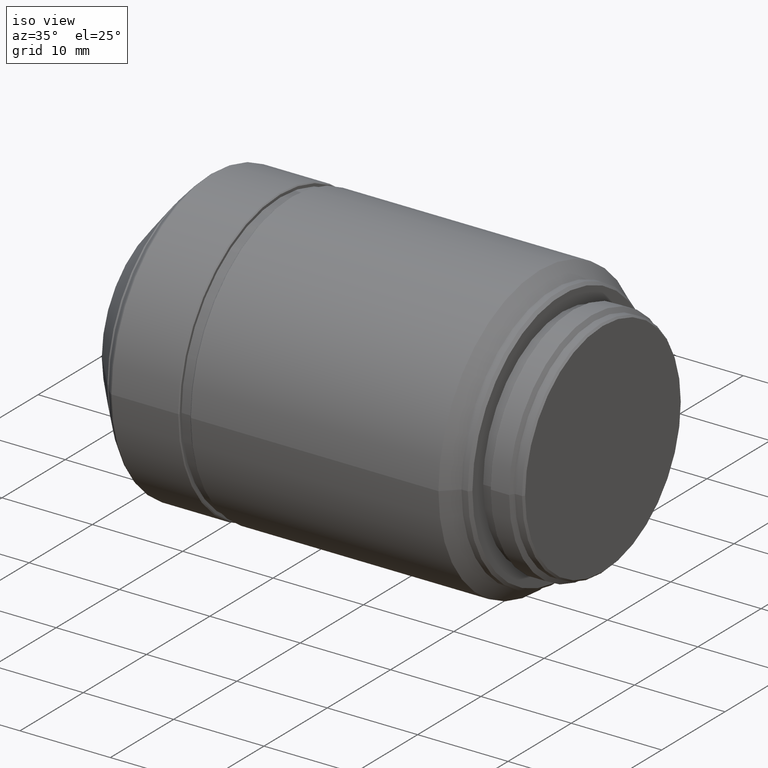
[diagram: clean part render]
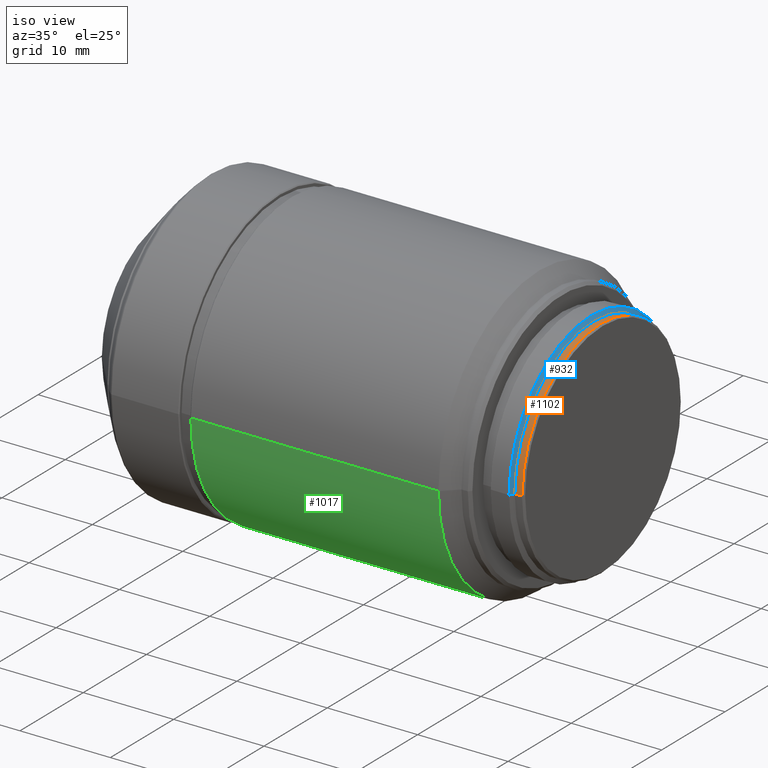
[diagram: same view with three faces highlighted in distinct colors, each labeled with its STEP entity id]
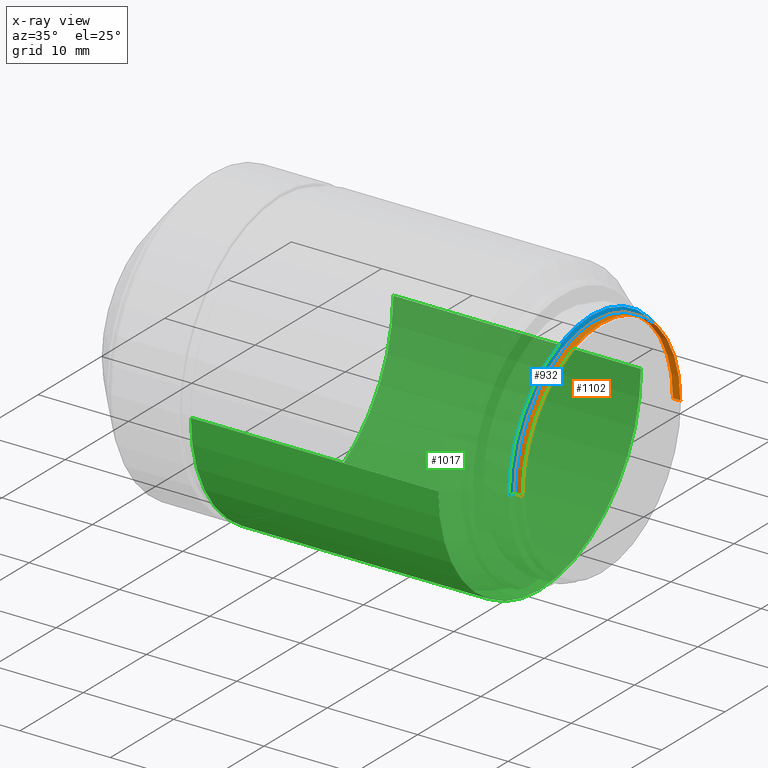
[diagram: x-ray of the same camera — body ghosted, the three highlighted faces saturated]
A machine part, iso view with three faces highlighted in distinct colors.
The next image is the same camera in x-ray (body ghosted, the three faces saturated) — at least one of them is partly hidden behind the body in this view.
Their STEP definitions:

[orange] entity #1102 — the highlighted cylindrical surface (partial cylindrical patch) has radius 12.5 mm, axis along (1, 0, 0).
#21 = VERTEX_POINT ( 'NONE', #728 ) ;
#226 = DIRECTION ( 'NONE',  ( 0.000000000000000000, -1.224646799147350002E-16, -1.000000000000000000 ) ) ;
#252 = CIRCLE ( 'NONE', #756, 12.50000000000000000 ) ;
#335 = CARTESIAN_POINT ( 'NONE',  ( 49.19877200000000528, 0.000000000000000000, 0.000000000000000000 ) ) ;
#383 = EDGE_CURVE ( 'NONE', #884, #21, #252, .T. ) ;
#445 = CYLINDRICAL_SURFACE ( 'NONE', #1265, 12.50000000000000000 ) ;
#447 = VERTEX_POINT ( 'NONE', #1104 ) ;
#472 = DIRECTION ( 'NONE',  ( 0.000000000000000000, 1.224646799147350002E-16, 1.000000000000000000 ) ) ;
#473 = CARTESIAN_POINT ( 'NONE',  ( 48.79877199999999959, -1.530808498934190141E-15, -12.50000000000000000 ) ) ;
#510 = DIRECTION ( 'NONE',  ( 1.000000000000000000, 0.000000000000000000, 0.000000000000000000 ) ) ;
#571 = EDGE_CURVE ( 'NONE', #1004, #884, #1222, .T. ) ;
#587 = CARTESIAN_POINT ( 'NONE',  ( 48.79877199999999959, 3.061616997868379887E-15, 12.50000000000000000 ) ) ;
#592 = DIRECTION ( 'NONE',  ( 1.000000000000000000, 0.000000000000000000, 0.000000000000000000 ) ) ;
#657 = EDGE_CURVE ( 'NONE', #447, #21, #1034, .T. ) ;
#670 = CIRCLE ( 'NONE', #968, 12.50000000000000000 ) ;
#686 = CARTESIAN_POINT ( 'NONE',  ( 48.39877200000000101, 0.000000000000000000, 0.000000000000000000 ) ) ;
#703 = ORIENTED_EDGE ( 'NONE', *, *, #383, .F. ) ;
#728 = CARTESIAN_POINT ( 'NONE',  ( 49.19877200000000528, 0.000000000000000000, -12.50000000000000000 ) ) ;
#737 = VECTOR ( 'NONE', #510, 1000.000000000000000 ) ;
#741 = ORIENTED_EDGE ( 'NONE', *, *, #657, .T. ) ;
#756 = AXIS2_PLACEMENT_3D ( 'NONE', #335, #1209, #988 ) ;
#762 = FACE_OUTER_BOUND ( 'NONE', #1236, .T. ) ;
#783 = ORIENTED_EDGE ( 'NONE', *, *, #1118, .T. ) ;
#809 = DIRECTION ( 'NONE',  ( 1.000000000000000000, 0.000000000000000000, 0.000000000000000000 ) ) ;
#874 = CARTESIAN_POINT ( 'NONE',  ( 48.79877199999999959, 0.000000000000000000, 0.000000000000000000 ) ) ;
#884 = VERTEX_POINT ( 'NONE', #1375 ) ;
#895 = CARTESIAN_POINT ( 'NONE',  ( 48.39877200000000101, 3.061616997868379887E-15, 12.50000000000000000 ) ) ;
#968 = AXIS2_PLACEMENT_3D ( 'NONE', #686, #592, #472 ) ;
#988 = DIRECTION ( 'NONE',  ( 0.000000000000000000, 1.224646799147350002E-16, 1.000000000000000000 ) ) ;
#1004 = VERTEX_POINT ( 'NONE', #895 ) ;
#1034 = LINE ( 'NONE', #473, #1088 ) ;
#1037 = ORIENTED_EDGE ( 'NONE', *, *, #571, .F. ) ;
#1088 = VECTOR ( 'NONE', #809, 1000.000000000000000 ) ;
#1102 = ADVANCED_FACE ( 'NONE', ( #762 ), #445, .T. ) ;
#1104 = CARTESIAN_POINT ( 'NONE',  ( 48.39877200000000101, -1.530808498934190141E-15, -12.50000000000000000 ) ) ;
#1118 = EDGE_CURVE ( 'NONE', #1004, #447, #670, .T. ) ;
#1209 = DIRECTION ( 'NONE',  ( 1.000000000000000000, 0.000000000000000000, 0.000000000000000000 ) ) ;
#1222 = LINE ( 'NONE', #587, #737 ) ;
#1236 = EDGE_LOOP ( 'NONE', ( #741, #703, #1037, #783 ) ) ;
#1265 = AXIS2_PLACEMENT_3D ( 'NONE', #874, #1295, #226 ) ;
#1295 = DIRECTION ( 'NONE',  ( 1.000000000000000000, 0.000000000000000000, 0.000000000000000000 ) ) ;
#1375 = CARTESIAN_POINT ( 'NONE',  ( 49.19877200000000528, 1.530808498934190141E-15, 12.50000000000000000 ) ) ;

[blue] entity #932 — the highlighted conical surface has half-angle 60 deg.
#33 = EDGE_CURVE ( 'NONE', #1004, #998, #393, .T. ) ;
#57 = AXIS2_PLACEMENT_3D ( 'NONE', #1332, #267, #253 ) ;
#146 = LINE ( 'NONE', #446, #486 ) ;
#188 = AXIS2_PLACEMENT_3D ( 'NONE', #781, #333, #449 ) ;
#213 = VERTEX_POINT ( 'NONE', #1281 ) ;
#215 = CARTESIAN_POINT ( 'NONE',  ( 48.11009686540520391, 1.592040838891559884E-15, 13.00000000000000000 ) ) ;
#253 = DIRECTION ( 'NONE',  ( 0.000000000000000000, 1.224646799147350002E-16, 1.000000000000000000 ) ) ;
#267 = DIRECTION ( 'NONE',  ( 1.000000000000000000, 0.000000000000000000, 0.000000000000000000 ) ) ;
#278 = CIRCLE ( 'NONE', #57, 13.00000000000000000 ) ;
#296 = CONICAL_SURFACE ( 'NONE', #188, 13.00000000000000000, 1.047197551196598297 ) ;
#333 = DIRECTION ( 'NONE',  ( -1.000000000000000000, 0.000000000000000000, 0.000000000000000000 ) ) ;
#367 = EDGE_CURVE ( 'NONE', #447, #213, #146, .T. ) ;
#393 = LINE ( 'NONE', #723, #1221 ) ;
#446 = CARTESIAN_POINT ( 'NONE',  ( 48.11009686540520391, 0.000000000000000000, -13.00000000000000000 ) ) ;
#447 = VERTEX_POINT ( 'NONE', #1104 ) ;
#449 = DIRECTION ( 'NONE',  ( 0.000000000000000000, 1.224646799147350002E-16, 1.000000000000000000 ) ) ;
#472 = DIRECTION ( 'NONE',  ( 0.000000000000000000, 1.224646799147350002E-16, 1.000000000000000000 ) ) ;
#486 = VECTOR ( 'NONE', #889, 1000.000000000000000 ) ;
#523 = EDGE_LOOP ( 'NONE', ( #682, #1339, #659, #771 ) ) ;
#592 = DIRECTION ( 'NONE',  ( 1.000000000000000000, 0.000000000000000000, 0.000000000000000000 ) ) ;
#659 = ORIENTED_EDGE ( 'NONE', *, *, #367, .F. ) ;
#670 = CIRCLE ( 'NONE', #968, 12.50000000000000000 ) ;
#682 = ORIENTED_EDGE ( 'NONE', *, *, #33, .T. ) ;
#686 = CARTESIAN_POINT ( 'NONE',  ( 48.39877200000000101, 0.000000000000000000, 0.000000000000000000 ) ) ;
#723 = CARTESIAN_POINT ( 'NONE',  ( 48.11009686540520391, 1.592040838891559884E-15, 13.00000000000000000 ) ) ;
#771 = ORIENTED_EDGE ( 'NONE', *, *, #1118, .F. ) ;
#781 = CARTESIAN_POINT ( 'NONE',  ( 48.11009686540520391, 0.000000000000000000, 0.000000000000000000 ) ) ;
#817 = DIRECTION ( 'NONE',  ( -0.4999999999999998890, 1.060575238724909750E-16, 0.8660254037844387076 ) ) ;
#880 = FACE_OUTER_BOUND ( 'NONE', #523, .T. ) ;
#889 = DIRECTION ( 'NONE',  ( -0.4999999999999998890, 0.000000000000000000, -0.8660254037844387076 ) ) ;
#895 = CARTESIAN_POINT ( 'NONE',  ( 48.39877200000000101, 3.061616997868379887E-15, 12.50000000000000000 ) ) ;
#932 = ADVANCED_FACE ( 'NONE', ( #880 ), #296, .T. ) ;
#968 = AXIS2_PLACEMENT_3D ( 'NONE', #686, #592, #472 ) ;
#998 = VERTEX_POINT ( 'NONE', #215 ) ;
#1004 = VERTEX_POINT ( 'NONE', #895 ) ;
#1104 = CARTESIAN_POINT ( 'NONE',  ( 48.39877200000000101, -1.530808498934190141E-15, -12.50000000000000000 ) ) ;
#1118 = EDGE_CURVE ( 'NONE', #1004, #447, #670, .T. ) ;
#1126 = EDGE_CURVE ( 'NONE', #998, #213, #278, .T. ) ;
#1221 = VECTOR ( 'NONE', #817, 1000.000000000000000 ) ;
#1281 = CARTESIAN_POINT ( 'NONE',  ( 48.11009686540520391, 0.000000000000000000, -13.00000000000000000 ) ) ;
#1332 = CARTESIAN_POINT ( 'NONE',  ( 48.11009686540520391, 0.000000000000000000, 0.000000000000000000 ) ) ;
#1339 = ORIENTED_EDGE ( 'NONE', *, *, #1126, .T. ) ;

[green] entity #1017 — the highlighted cylindrical surface (partial cylindrical patch) has radius 16 mm, axis along (1, 0, 0).
#2 = CARTESIAN_POINT ( 'NONE',  ( 14.99877200000000066, 0.000000000000000000, 0.000000000000000000 ) ) ;
#13 = LINE ( 'NONE', #220, #1003 ) ;
#73 = DIRECTION ( 'NONE',  ( 1.000000000000000000, 0.000000000000000000, 0.000000000000000000 ) ) ;
#109 = CARTESIAN_POINT ( 'NONE',  ( 28.69877200000000173, 0.000000000000000000, 0.000000000000000000 ) ) ;
#111 = EDGE_CURVE ( 'NONE', #1027, #583, #265, .T. ) ;
#131 = DIRECTION ( 'NONE',  ( 1.000000000000000000, 0.000000000000000000, 0.000000000000000000 ) ) ;
#150 = CARTESIAN_POINT ( 'NONE',  ( 14.99877200000000066, -1.959434878635769865E-15, -16.00000000000000000 ) ) ;
#163 = VECTOR ( 'NONE', #806, 1000.000000000000000 ) ;
#199 = EDGE_CURVE ( 'NONE', #1349, #583, #1042, .T. ) ;
#203 = DIRECTION ( 'NONE',  ( 0.000000000000000000, 1.224646799147350002E-16, 1.000000000000000000 ) ) ;
#220 = CARTESIAN_POINT ( 'NONE',  ( 28.69877200000000173, -1.959434878635769865E-15, -16.00000000000000000 ) ) ;
#235 = CYLINDRICAL_SURFACE ( 'NONE', #1337, 16.00000000000000000 ) ;
#265 = LINE ( 'NONE', #1146, #163 ) ;
#300 = CARTESIAN_POINT ( 'NONE',  ( 42.39877200000000101, 0.000000000000000000, 0.000000000000000000 ) ) ;
#391 = CIRCLE ( 'NONE', #577, 16.00000000000000000 ) ;
#466 = DIRECTION ( 'NONE',  ( 0.000000000000000000, -1.224646799147350002E-16, -1.000000000000000000 ) ) ;
#577 = AXIS2_PLACEMENT_3D ( 'NONE', #2, #73, #203 ) ;
#583 = VERTEX_POINT ( 'NONE', #814 ) ;
#639 = ORIENTED_EDGE ( 'NONE', *, *, #111, .T. ) ;
#745 = CARTESIAN_POINT ( 'NONE',  ( 42.39877200000000101, 0.000000000000000000, -16.00000000000000000 ) ) ;
#769 = EDGE_CURVE ( 'NONE', #1217, #1027, #391, .T. ) ;
#806 = DIRECTION ( 'NONE',  ( 1.000000000000000000, 0.000000000000000000, 0.000000000000000000 ) ) ;
#814 = CARTESIAN_POINT ( 'NONE',  ( 42.39877200000000101, 1.959434878635760004E-15, 16.00000000000000000 ) ) ;
#834 = ORIENTED_EDGE ( 'NONE', *, *, #199, .F. ) ;
#944 = EDGE_CURVE ( 'NONE', #1217, #1349, #13, .T. ) ;
#970 = ORIENTED_EDGE ( 'NONE', *, *, #944, .F. ) ;
#980 = DIRECTION ( 'NONE',  ( 0.000000000000000000, 1.224646799147350002E-16, 1.000000000000000000 ) ) ;
#994 = FACE_OUTER_BOUND ( 'NONE', #1248, .T. ) ;
#1003 = VECTOR ( 'NONE', #131, 1000.000000000000000 ) ;
#1017 = ADVANCED_FACE ( 'NONE', ( #994 ), #235, .T. ) ;
#1027 = VERTEX_POINT ( 'NONE', #1077 ) ;
#1042 = CIRCLE ( 'NONE', #1379, 16.00000000000000000 ) ;
#1059 = DIRECTION ( 'NONE',  ( 1.000000000000000000, 0.000000000000000000, 0.000000000000000000 ) ) ;
#1075 = ORIENTED_EDGE ( 'NONE', *, *, #769, .T. ) ;
#1077 = CARTESIAN_POINT ( 'NONE',  ( 14.99877200000000066, 3.918869757271530263E-15, 16.00000000000000000 ) ) ;
#1103 = DIRECTION ( 'NONE',  ( 1.000000000000000000, 0.000000000000000000, 0.000000000000000000 ) ) ;
#1146 = CARTESIAN_POINT ( 'NONE',  ( 28.69877200000000173, 3.918869757271530263E-15, 16.00000000000000000 ) ) ;
#1217 = VERTEX_POINT ( 'NONE', #150 ) ;
#1248 = EDGE_LOOP ( 'NONE', ( #1075, #639, #834, #970 ) ) ;
#1337 = AXIS2_PLACEMENT_3D ( 'NONE', #109, #1103, #466 ) ;
#1349 = VERTEX_POINT ( 'NONE', #745 ) ;
#1379 = AXIS2_PLACEMENT_3D ( 'NONE', #300, #1059, #980 ) ;